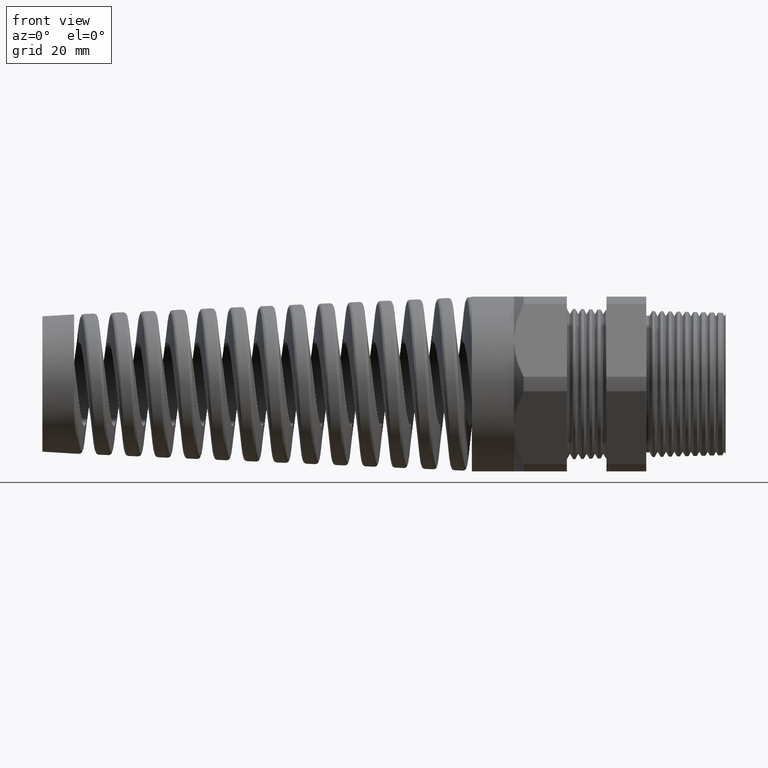
[diagram: clean part render]
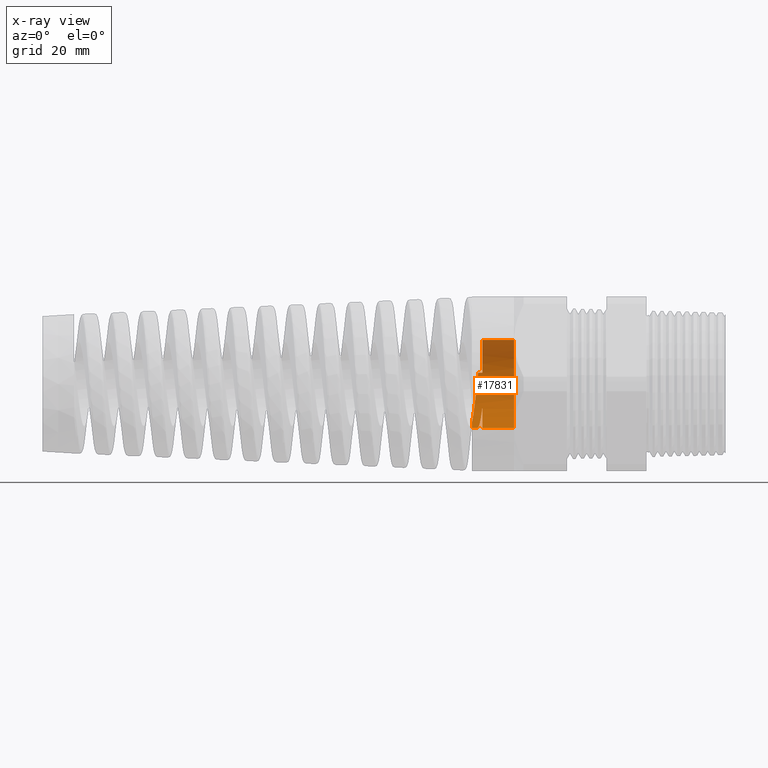
[diagram: x-ray — body ghosted, one internal face saturated and labeled with its STEP entity id]
A machine part, front view, then the same camera in x-ray: the body is ghosted and one INTERNAL B-rep face — a face not visible from any outside direction — is saturated and labeled: STEP entity #17831.
In plain terms, the highlighted cylindrical surface (partial cylindrical patch) has radius 8.321 mm, axis along (1, 0, 0).
Its self-contained STEP definition (entity closure, byte-faithful):
#23 = EDGE_CURVE ( 'NONE', #27, #21421, #348, .T. ) ;
#24 = ORIENTED_EDGE ( 'NONE', *, *, #17830, .T. ) ;
#25 = ORIENTED_EDGE ( 'NONE', *, *, #12520, .T. ) ;
#26 = ORIENTED_EDGE ( 'NONE', *, *, #23, .T. ) ;
#27 = VERTEX_POINT ( 'NONE', #343 ) ;
#152 = VERTEX_POINT ( 'NONE', #525 ) ;
#343 = CARTESIAN_POINT ( 'NONE',  ( -1.530000000000000200, 0.2708854878156625700, -0.1842300432168347500 ) ) ;
#344 = DIRECTION ( 'NONE',  ( 0.0000000000000000000, 0.0000000000000000000, -1.000000000000000000 ) ) ;
#345 = DIRECTION ( 'NONE',  ( -1.000000000000000000, 0.0000000000000000000, 0.0000000000000000000 ) ) ;
#346 = CARTESIAN_POINT ( 'NONE',  ( -1.530000000000000000, 0.0000000000000000000, 0.0000000000000000000 ) ) ;
#347 = AXIS2_PLACEMENT_3D ( 'NONE', #346, #345, #344 ) ;
#348 = CIRCLE ( 'NONE', #347, 0.3275967892589891100 ) ;
#525 = CARTESIAN_POINT ( 'NONE',  ( -1.530000000000000000, 0.3168342043422755500, 0.08328111005261461300 ) ) ;
#2920 = DIRECTION ( 'NONE',  ( 0.0000000000000000000, 0.0000000000000000000, 1.000000000000000000 ) ) ;
#2921 = DIRECTION ( 'NONE',  ( 1.000000000000000000, 0.0000000000000000000, 0.0000000000000000000 ) ) ;
#2922 = CARTESIAN_POINT ( 'NONE',  ( -1.293779527559055300, 0.0000000000000000000, 0.0000000000000000000 ) ) ;
#2923 = AXIS2_PLACEMENT_3D ( 'NONE', #2922, #2921, #2920 ) ;
#2924 = CIRCLE ( 'NONE', #2923, 0.3275967892589891100 ) ;
#3129 = AXIS2_PLACEMENT_3D ( 'NONE', #6196, #7007, #7006 ) ;
#6196 = CARTESIAN_POINT ( 'NONE',  ( -1.606986927084337300, 0.0000000000000000000, 0.0000000000000000000 ) ) ;
#6587 = EDGE_CURVE ( 'NONE', #19294, #152, #19843, .T. ) ;
#6631 = CIRCLE ( 'NONE', #6712, 0.3275967892589891100 ) ;
#6632 = ORIENTED_EDGE ( 'NONE', *, *, #6587, .F. ) ;
#6708 = DIRECTION ( 'NONE',  ( 0.0000000000000000000, 0.0000000000000000000, -1.000000000000000000 ) ) ;
#6710 = DIRECTION ( 'NONE',  ( -1.000000000000000000, 0.0000000000000000000, 0.0000000000000000000 ) ) ;
#6711 = CARTESIAN_POINT ( 'NONE',  ( -1.530000000000000000, 0.0000000000000000000, 0.0000000000000000000 ) ) ;
#6712 = AXIS2_PLACEMENT_3D ( 'NONE', #6711, #6710, #6708 ) ;
#6846 = CYLINDRICAL_SURFACE ( 'NONE', #3129, 0.3275967892589891100 ) ;
#6848 = FACE_OUTER_BOUND ( 'NONE', #17832, .T. ) ;
#6849 = DIRECTION ( 'NONE',  ( 1.000000000000000000, 0.0000000000000000000, 0.0000000000000000000 ) ) ;
#6850 = VECTOR ( 'NONE', #6849, 39.37007874015748100 ) ;
#6852 = CARTESIAN_POINT ( 'NONE',  ( -1.606986927084337300, 0.0000000000000000000, -0.3275967892589891100 ) ) ;
#6853 = LINE ( 'NONE', #6852, #6850 ) ;
#6998 = CARTESIAN_POINT ( 'NONE',  ( -1.293779527559055300, 0.0000000000000000000, -0.3275967892589891100 ) ) ;
#7006 = DIRECTION ( 'NONE',  ( 0.0000000000000000000, 0.0000000000000000000, -1.000000000000000000 ) ) ;
#7007 = DIRECTION ( 'NONE',  ( 1.000000000000000000, 0.0000000000000000000, 0.0000000000000000000 ) ) ;
#8125 = CARTESIAN_POINT ( 'NONE',  ( -1.559842567108392400, 0.3168342043422754900, 0.08328111005261462600 ) ) ;
#8417 = CARTESIAN_POINT ( 'NONE',  ( -1.575601669585503500, 0.3236741461372540900, -0.06263730614268980800 ) ) ;
#8418 = CARTESIAN_POINT ( 'NONE',  ( -1.567677821366577000, 0.3294914107643052100, 0.01112633052904235000 ) ) ;
#8419 = CARTESIAN_POINT ( 'NONE',  ( -1.563807957625729500, 0.3262449561246955100, 0.04747889690533573000 ) ) ;
#8420 = CARTESIAN_POINT ( 'NONE',  ( -1.559842567108392400, 0.3168342043422754900, 0.08328111005261462600 ) ) ;
#8423 = B_SPLINE_CURVE_WITH_KNOTS ( 'NONE', 3,
 ( #8420, #8419, #8418, #8417, #8482, #8481, #8480, #8479, #8478, #8477, #8476, #8475, #8474, #8473 ),
 .UNSPECIFIED., .F., .F.,
 ( 4, 2, 2, 2, 2, 2, 4 ),
 ( 4.336808689942017700E-019, 0.002796671433904517100, 0.005593342867809034100, 0.006991678584761292600, 0.008390014301713549400, 0.009788350018665808000, 0.01118668573561806600 ),
 .UNSPECIFIED. ) ;
#8424 = CARTESIAN_POINT ( 'NONE',  ( -1.606986927084337300, 0.1525758692570101400, -0.2898969824838925100 ) ) ;
#8453 = CARTESIAN_POINT ( 'NONE',  ( -1.606986927084337300, 0.0000000000000000000, -0.3275967892589891100 ) ) ;
#8454 = DIRECTION ( 'NONE',  ( 0.0000000000000000000, 0.0000000000000000000, 1.000000000000000000 ) ) ;
#8455 = DIRECTION ( 'NONE',  ( -1.000000000000000000, 0.0000000000000000000, 0.0000000000000000000 ) ) ;
#8456 = CARTESIAN_POINT ( 'NONE',  ( -1.606986927084337300, 0.0000000000000000000, 0.0000000000000000000 ) ) ;
#8457 = AXIS2_PLACEMENT_3D ( 'NONE', #8456, #8455, #8454 ) ;
#8458 = CIRCLE ( 'NONE', #8457, 0.3275967892589891100 ) ;
#8473 = CARTESIAN_POINT ( 'NONE',  ( -1.606986927084337300, 0.1525758692570101400, -0.2898969824838925100 ) ) ;
#8474 = CARTESIAN_POINT ( 'NONE',  ( -1.605004228757573400, 0.1689550248544231800, -0.2812764584564995100 ) ) ;
#8475 = CARTESIAN_POINT ( 'NONE',  ( -1.603049201785258200, 0.1843852307226857600, -0.2713953827480124500 ) ) ;
#8476 = CARTESIAN_POINT ( 'NONE',  ( -1.599135240126627900, 0.2134158621745918000, -0.2492128344565621200 ) ) ;
#8477 = CARTESIAN_POINT ( 'NONE',  ( -1.597170242409932300, 0.2270567303457176100, -0.2368676581873589400 ) ) ;
#8478 = CARTESIAN_POINT ( 'NONE',  ( -1.593211744778428000, 0.2522511044945210400, -0.2098342835948064400 ) ) ;
#8479 = CARTESIAN_POINT ( 'NONE',  ( -1.591259486015275600, 0.2635452632030838000, -0.1954392749245358100 ) ) ;
#8480 = CARTESIAN_POINT ( 'NONE',  ( -1.587349972702910100, 0.2836196646288879900, -0.1649621222451025100 ) ) ;
#8481 = CARTESIAN_POINT ( 'NONE',  ( -1.585388383493987500, 0.2924168696716706900, -0.1488415606135686800 ) ) ;
#8482 = CARTESIAN_POINT ( 'NONE',  ( -1.579447548986002300, 0.3147507156512587800, -0.09807528402441936800 ) ) ;
#12520 = EDGE_CURVE ( 'NONE', #17835, #21435, #2924, .T. ) ;
#17766 = EDGE_CURVE ( 'NONE', #21426, #152, #6631, .T. ) ;
#17767 = ORIENTED_EDGE ( 'NONE', *, *, #17766, .T. ) ;
#17768 = ORIENTED_EDGE ( 'NONE', *, *, #21449, .F. ) ;
#17830 = EDGE_CURVE ( 'NONE', #21421, #17835, #6853, .T. ) ;
#17831 = ADVANCED_FACE ( 'NONE', ( #6848 ), #6846, .F. ) ;
#17832 = EDGE_LOOP ( 'NONE', ( #17768, #17767, #6632, #19401, #19416, #19424, #21425, #26, #24, #25 ) ) ;
#17835 = VERTEX_POINT ( 'NONE', #6998 ) ;
#18778 = CARTESIAN_POINT ( 'NONE',  ( -1.530000000000000000, 4.011903593769710400E-017, 0.3275967892589891100 ) ) ;
#18781 = CARTESIAN_POINT ( 'NONE',  ( -1.530000000000000000, 0.0000000000000000000, -0.3275967892589891100 ) ) ;
#18792 = CARTESIAN_POINT ( 'NONE',  ( -1.564009951999516300, -2.582663482135253900E-014, -0.3275967892589890500 ) ) ;
#18816 = CARTESIAN_POINT ( 'NONE',  ( -1.293779527559055300, 4.011903593769710400E-017, 0.3275967892589891100 ) ) ;
#18820 = CARTESIAN_POINT ( 'NONE',  ( -1.530000000000000200, 0.2708854878156625700, -0.1842300432168347500 ) ) ;
#18821 = CARTESIAN_POINT ( 'NONE',  ( -1.531410086634069000, 0.2634491727199148600, -0.1951641439046785900 ) ) ;
#18822 = CARTESIAN_POINT ( 'NONE',  ( -1.532820709330573500, 0.2553525623190085500, -0.2056507293556776600 ) ) ;
#18823 = CARTESIAN_POINT ( 'NONE',  ( -1.535662761244108900, 0.2378099785060256200, -0.2257068179970843900 ) ) ;
#18824 = CARTESIAN_POINT ( 'NONE',  ( -1.537096399322531500, 0.2283361318917303300, -0.2352842027455170300 ) ) ;
#18825 = CARTESIAN_POINT ( 'NONE',  ( -1.541344154380362800, 0.1986429983028005500, -0.2618514292158106700 ) ) ;
#18826 = CARTESIAN_POINT ( 'NONE',  ( -1.544145354140412000, 0.1769458301231798500, -0.2769924177353448300 ) ) ;
#18827 = CARTESIAN_POINT ( 'NONE',  ( -1.548422821282398300, 0.1415009501489719000, -0.2957632159798616000 ) ) ;
#18828 = CARTESIAN_POINT ( 'NONE',  ( -1.549848851664264600, 0.1292933884390982700, -0.3012947696703229300 ) ) ;
#18829 = CARTESIAN_POINT ( 'NONE',  ( -1.552674928881980800, 0.1045313684354307900, -0.3107547449963922700 ) ) ;
#18830 = CARTESIAN_POINT ( 'NONE',  ( -1.554082422364613200, 0.09191499081301342200, -0.3147167414565210100 ) ) ;
#18831 = CARTESIAN_POINT ( 'NONE',  ( -1.556907033668416100, 0.06621492314625533600, -0.3211083568546644300 ) ) ;
#18832 = CARTESIAN_POINT ( 'NONE',  ( -1.558326384258578400, 0.05310937390641904500, -0.3235408234079000200 ) ) ;
#18833 = CARTESIAN_POINT ( 'NONE',  ( -1.561184453596147700, 0.02650398463903213100, -0.3267978102840465300 ) ) ;
#18834 = CARTESIAN_POINT ( 'NONE',  ( -1.562598808948257600, 0.01323511598854328900, -0.3275967892589902700 ) ) ;
#18835 = CARTESIAN_POINT ( 'NONE',  ( -1.564009951999516300, -2.582663482135253900E-014, -0.3275967892589890500 ) ) ;
#18839 = DIRECTION ( 'NONE',  ( 1.000000000000000000, 0.0000000000000000000, 0.0000000000000000000 ) ) ;
#18840 = VECTOR ( 'NONE', #18839, 39.37007874015748100 ) ;
#18841 = CARTESIAN_POINT ( 'NONE',  ( -1.606986927084337300, 0.0000000000000000000, -0.3275967892589891100 ) ) ;
#18842 = LINE ( 'NONE', #18841, #18840 ) ;
#18843 = B_SPLINE_CURVE_WITH_KNOTS ( 'NONE', 3,
 ( #18835, #18834, #18833, #18832, #18831, #18830, #18829, #18828, #18827, #18826, #18825, #18824, #18823, #18822, #18821, #18820 ),
 .UNSPECIFIED., .F., .F.,
 ( 4, 2, 2, 2, 2, 2, 2, 4 ),
 ( 0.01024741821516600600, 0.01126073674904397000, 0.01227405528292193500, 0.01328737381679989700, 0.01430069235067786200, 0.01632732941843378600, 0.01734064795231174800, 0.01835396648618970900 ),
 .UNSPECIFIED. ) ;
#18929 = DIRECTION ( 'NONE',  ( 1.000000000000000000, 0.0000000000000000000, 0.0000000000000000000 ) ) ;
#18930 = VECTOR ( 'NONE', #18929, 39.37007874015748100 ) ;
#18931 = CARTESIAN_POINT ( 'NONE',  ( -1.606986927084337300, 4.011903593769710400E-017, 0.3275967892589891100 ) ) ;
#18932 = LINE ( 'NONE', #18931, #18930 ) ;
#19294 = VERTEX_POINT ( 'NONE', #8125 ) ;
#19401 = ORIENTED_EDGE ( 'NONE', *, *, #19413, .T. ) ;
#19413 = EDGE_CURVE ( 'NONE', #19294, #19415, #8423, .T. ) ;
#19415 = VERTEX_POINT ( 'NONE', #8424 ) ;
#19416 = ORIENTED_EDGE ( 'NONE', *, *, #19425, .T. ) ;
#19424 = ORIENTED_EDGE ( 'NONE', *, *, #21428, .T. ) ;
#19425 = EDGE_CURVE ( 'NONE', #19415, #19426, #8458, .T. ) ;
#19426 = VERTEX_POINT ( 'NONE', #8453 ) ;
#19840 = DIRECTION ( 'NONE',  ( 1.000000000000000000, 0.0000000000000000000, 0.0000000000000000000 ) ) ;
#19841 = VECTOR ( 'NONE', #19840, 39.37007874015748100 ) ;
#19842 = CARTESIAN_POINT ( 'NONE',  ( -1.606986927084337300, 0.3168342043422755500, 0.08328111005261462600 ) ) ;
#19843 = LINE ( 'NONE', #19842, #19841 ) ;
#21413 = VERTEX_POINT ( 'NONE', #18792 ) ;
#21421 = VERTEX_POINT ( 'NONE', #18781 ) ;
#21425 = ORIENTED_EDGE ( 'NONE', *, *, #21427, .T. ) ;
#21426 = VERTEX_POINT ( 'NONE', #18778 ) ;
#21427 = EDGE_CURVE ( 'NONE', #21413, #27, #18843, .T. ) ;
#21428 = EDGE_CURVE ( 'NONE', #19426, #21413, #18842, .T. ) ;
#21435 = VERTEX_POINT ( 'NONE', #18816 ) ;
#21449 = EDGE_CURVE ( 'NONE', #21426, #21435, #18932, .T. ) ;